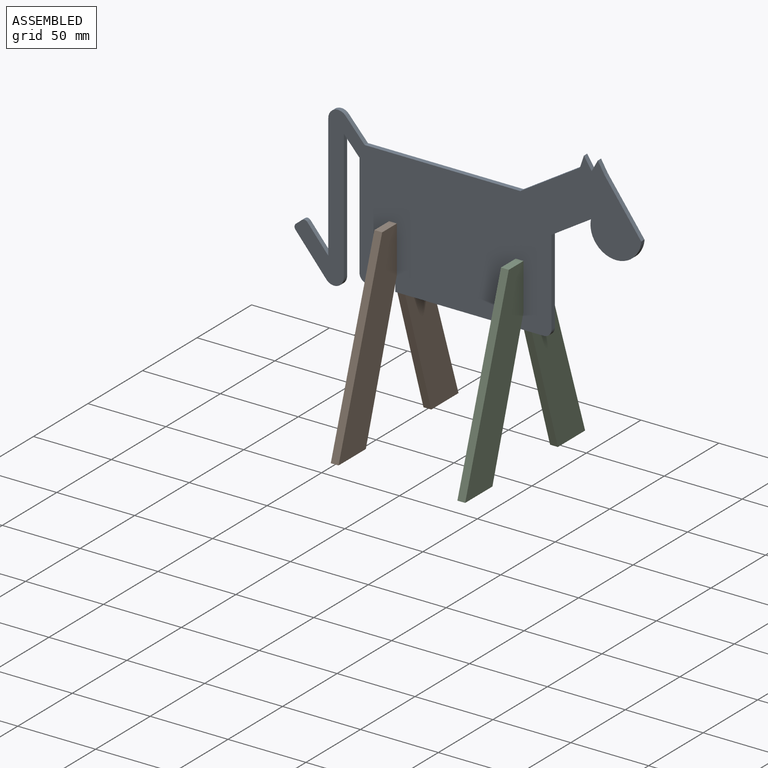
[diagram: assembled view]
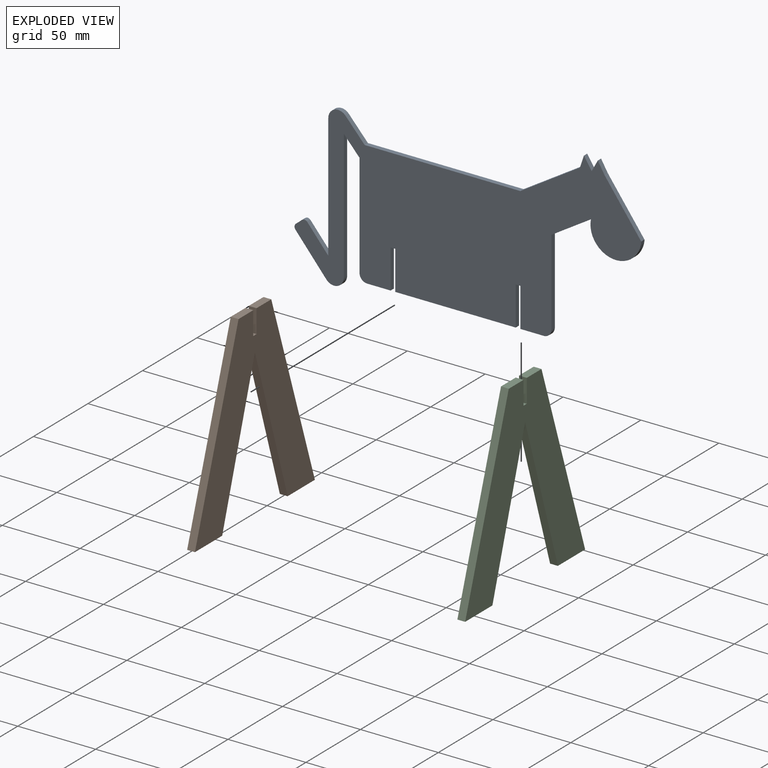
[diagram: exploded view]
GUIDED TOUR — MATED ASSEMBLY (Onshape document 58ab483d8db0d80fd6d0d6fe, AutoMate assembly 58ab483d8db0d80fd6d0d6fe_6cc54207824ee66ce0dc1627_bd182ea36f4a58ef7261e756_default)

This assembly has 3 components, labeled P0..P2 below (a component is one placed occurrence of a part; the same part can appear more than once), held together by 3 mates. A mate is a constraint between two components; its type names the relative motion it leaves free:
  PLANAR — leaves sliding in the plane through the listed point (normal = the listed direction) and rotation about that normal free.
Axis/direction vectors are unit vectors and 'through' points are millimeter coordinates, both in the assembly's world frame.

MATES
  1. PLANAR "Planar 1": P2 <-> P0, direction (0.000, 0.000, 1.000) through (121.61, -61.99, -29.25) mm
  2. PLANAR "Planar 2": P2 <-> P0, direction (-1.000, 0.000, 0.000) through (119.11, -61.99, -39.25) mm
  3. PLANAR "Planar 3": P0 <-> P2, direction (0.000, -1.000, 0.000) through (80.44, -63.49, -54.25) mm

ASSEMBLY ORDER
  1. P0 — the base component [order verified]
  2. P2 [order verified]
  3. P1 [order verified]
Order-tag legend:
  [order verified] — this step's position reverses a verified removal order: the component was checked to insert without passing through the ones already placed.

Of the 3 components, 1 carries the full construction recipe — the FeatureScript program that regenerates the part's solid from scratch; the rest are supplied as boundary geometry only.
Each toured component is shown spotlighted twice — in the assembled view, then in the exploded view, where a leader line traces a displaced component back to its assembled socket (saturated green if recipe-attached, orange if geometry-only; every other component desaturated gray) — followed by its recipe or geometry summary and the mates that hold it.
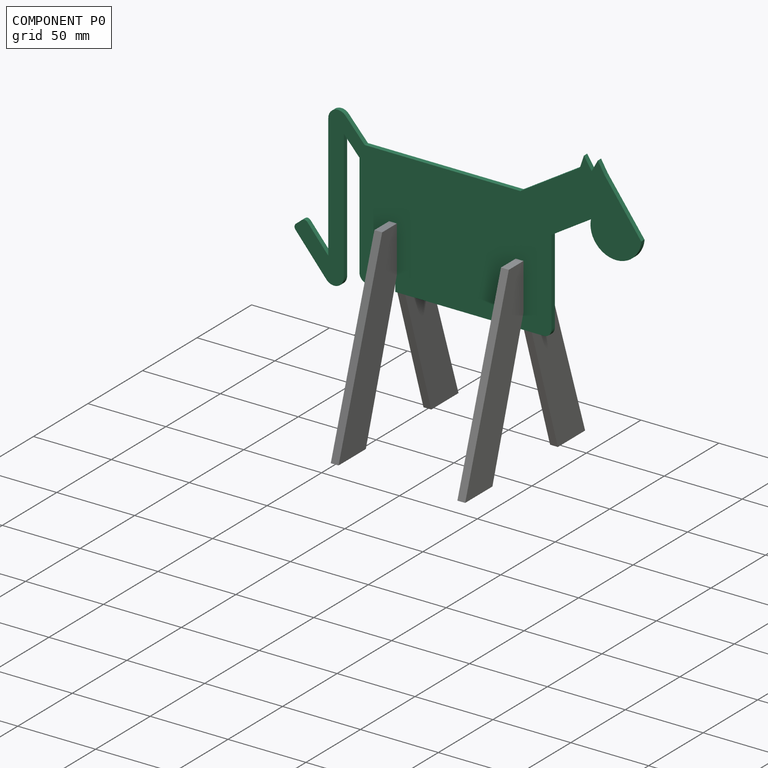
[diagram: component P0 — assembled]
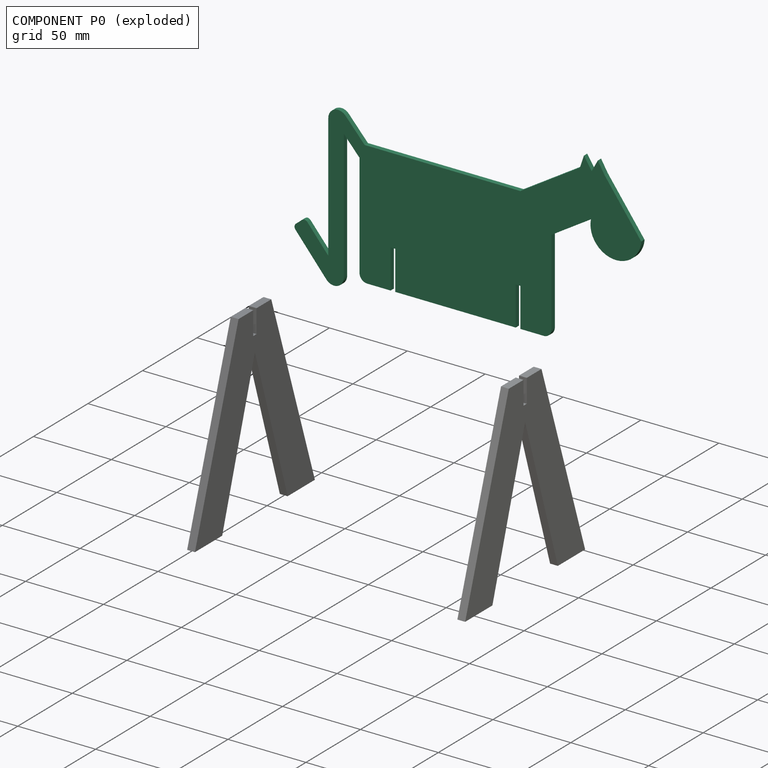
[diagram: component P0 — exploded]
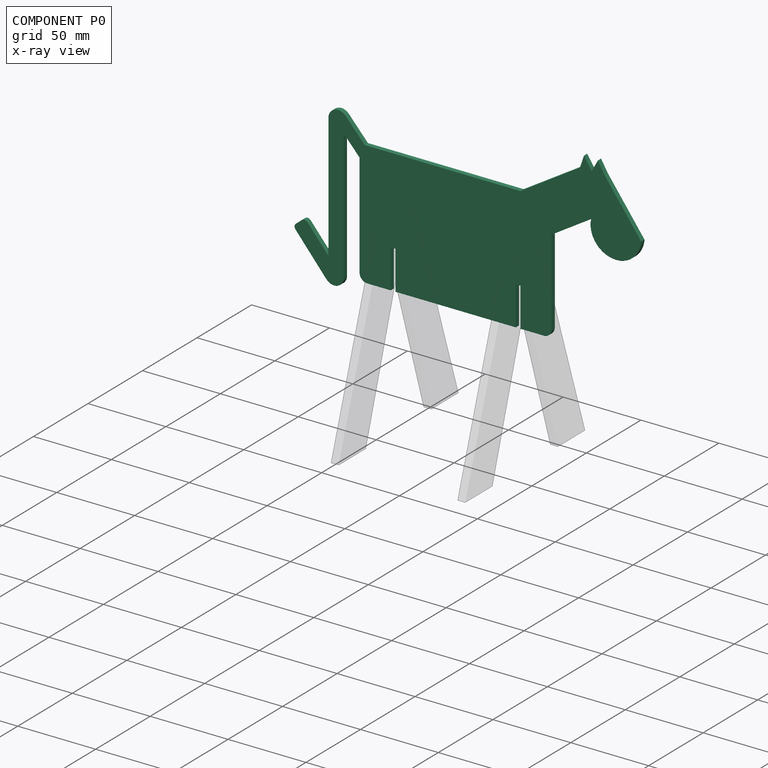
[diagram: component P0 — x-ray view]
COMPONENT P0 — recipe-attached (CADFS 00548355, mesh-verified: the recipe's output STEP matches this component's geometry to below the mesh-comparison resolution (tessellation chordal tolerance ~0.378 mm)).
Held by: PLANAR mate "Planar 1" to P2; PLANAR mate "Planar 2" to P2; PLANAR mate "Planar 3" to P2.
Construction recipe (FeatureScript — the CAD program that rebuilds this solid; sketch coordinates are in the units given by the * unit suffixes, e.g. mm):

FeatureScript 1549;
import(path : "onshape/std/geometry.fs", version : "1549.0");
import(path : "onshape/std/common.fs", version : "1549.0");
const mm = millimeter;
const VERTEX = EntityType.VERTEX;
const EDGE = EntityType.EDGE;
const FACE = EntityType.FACE;
const BODY = EntityType.BODY;
function v(x, y){return vector(x, y);}
function OD(order){return orderDisambiguation(order);}
function OSD(set){return originalSetDisambiguation(set);}
function TD(topology){return topologyDisambiguation(topology);}
function TDD(query){return trueDependencyDisambiguation(query);}
function sQuery(a, b, c) {return sketchEntityQuery(a, b, c);}

annotation { "Feature Type Name" : "Feature", "Feature Type Description" : "" }
export const myFeature = defineFeature(function(context is Context, id is Id, definition is map)
    precondition{}
    {
        {
            var Q0;
            Q0=qCreatedBy(makeId("Front.planeOp"),FACE);
            var sketch = newSketch(context, id + "F0", { "sketchPlane" : qUnion([Q0])});
            skLineSegment(sketch, "E0.bottom", {"start": v(-5, 0) * mm, "end": v(-20, 0) * mm});
            skLineSegment(sketch, "E0.top", {"start": v(-20, 80) * mm, "end": v(-120, 80) * mm});
            skLineSegment(sketch, "E0.left", {"start": v(0, 5) * mm, "end": v(0, 60) * mm});
            skLineSegment(sketch, "E0.right", {"start": v(-123.33, 5) * mm, "end": v(-123.33, 71.73) * mm});
            skLineSegment(sketch, "E1", {"start": v(-20, 0) * mm, "end": v(-20, 25) * mm});
            skLineSegment(sketch, "E2", {"start": v(-20, 25) * mm, "end": v(-23, 25) * mm});
            skLineSegment(sketch, "E3", {"start": v(-23, 25) * mm, "end": v(-23, 0) * mm});
            skLineSegment(sketch, "E4", {"start": v(-118.33, 0) * mm, "end": v(-103.33, 0) * mm});
            skLineSegment(sketch, "E5", {"start": v(-103.33, 0) * mm, "end": v(-103.33, 25) * mm});
            skLineSegment(sketch, "E6", {"start": v(-103.33, 25) * mm, "end": v(-100.33, 25) * mm});
            skLineSegment(sketch, "E7", {"start": v(-100.33, 25) * mm, "end": v(-100.33, 0) * mm});
            skLineSegment(sketch, "E8", {"start": v(-20, 80) * mm, "end": v(18.2, 103.78) * mm});
            skLineSegment(sketch, "E9", {"start": v(0, 60) * mm, "end": v(25.24, 75.7) * mm});
            skLineSegment(sketch, "E10", {"start": v(18.2, 103.78) * mm, "end": v(20.82, 111.53) * mm});
            skLineSegment(sketch, "E11", {"start": v(20.82, 111.53) * mm, "end": v(25.76, 103.78) * mm});
            skLineSegment(sketch, "E12", {"start": v(25.76, 103.78) * mm, "end": v(29.7, 111.03) * mm});
            skLineSegment(sketch, "E13", {"start": v(29.7, 111.03) * mm, "end": v(33.98, 103.78) * mm});
            skLineSegment(sketch, "E14", {"start": v(33.98, 103.78) * mm, "end": v(57.58, 71.48) * mm});
            skArc(sketch, "E15", {"start": v(25.24, 75.7) * mm, "mid": v(39.26, 56.5) * mm, "end": v(57.67, 71.55) * mm});
            skPoint(sketch, "E16", {"position": v(57.58, 71.48) * mm});
            skLineSegment(sketch, "E17", {"start": v(57.58, 71.48) * mm, "end": v(57.67, 71.55) * mm});
            skLineSegment(sketch, "E18", {"start": v(57.58, 71.48) * mm, "end": v(57.58, 71.48) * mm});
            skLineSegment(sketch, "E19", {"start": v(-120, 80) * mm, "end": v(-132.25, 93.7) * mm});
            skLineSegment(sketch, "E20", {"start": v(-123.33, 71.73) * mm, "end": v(-133.33, 82.9) * mm});
            skLineSegment(sketch, "E21", {"start": v(-143.33, 89.46) * mm, "end": v(-143.33, 9.46) * mm});
            skLineSegment(sketch, "E22.trimOffspring", {"start": v(-23, 0) * mm, "end": v(-100.33, 0) * mm});
            skLineSegment(sketch, "E23.trimOffspring", {"start": v(-103.33, 0) * mm, "end": v(-118.33, 0) * mm});
            skLineSegment(sketch, "E24", {"start": v(-143.33, 9.46) * mm, "end": v(-156.79, 25.44) * mm});
            skLineSegment(sketch, "E25", {"start": v(-160.28, 25.74) * mm, "end": v(-164.14, 22.49) * mm});
            skArc(sketch, "E26.filletArc", {"start": v(-132.25, 93.7) * mm, "mid": v(-139.25, 95.4) * mm, "end": v(-143.33, 89.46) * mm});
            skArc(sketch, "E27.filletArc", {"start": v(-156.79, 25.44) * mm, "mid": v(-158.47, 26.31) * mm, "end": v(-160.28, 25.74) * mm});
            skPoint(sketch, "E28.visualSharp", {"position": v(-161.23, 24.94) * mm});
            skArc(sketch, "E28.filletArc", {"start": v(-164.14, 22.49) * mm, "mid": v(-165, 20.8) * mm, "end": v(-164.44, 19) * mm});
            skLineSegment(sketch, "E29", {"start": v(-133.33, 82.9) * mm, "end": v(-133.33, -0.54) * mm});
            skLineSegment(sketch, "E30", {"start": v(-144.54, -4.63) * mm, "end": v(-164.44, 19) * mm});
            skArc(sketch, "E31.filletArc", {"start": v(-5, 0) * mm, "mid": v(-1.46, 1.46) * mm, "end": v(0, 5) * mm});
            skArc(sketch, "E32.filletArc", {"start": v(-123.33, 5) * mm, "mid": v(-121.87, 1.46) * mm, "end": v(-118.33, 0) * mm});
            skPoint(sketch, "E33.visualSharp", {"position": v(-133.33, -17.93) * mm});
            skArc(sketch, "E33.filletArc", {"start": v(-144.54, -4.63) * mm, "mid": v(-137.5, -6.5) * mm, "end": v(-133.33, -0.54) * mm});
            skSolve(sketch);
        }
        {
            var Q0;
            Q0=makeQuery(id+"F0.imprint","IMPRINT",FACE,{"disambiguationData":[TD([[makeQuery(id+"F0.imprint","IMPRINT",EDGE,{"derivedFrom":sQuery(id+"F0.wireOp",EDGE,"E0.top")}),1.0]])]});
            extrude(context, id + "F1", {"entities" : qUnion([Q0]), "depth" : 3 * mm});
        }
    });
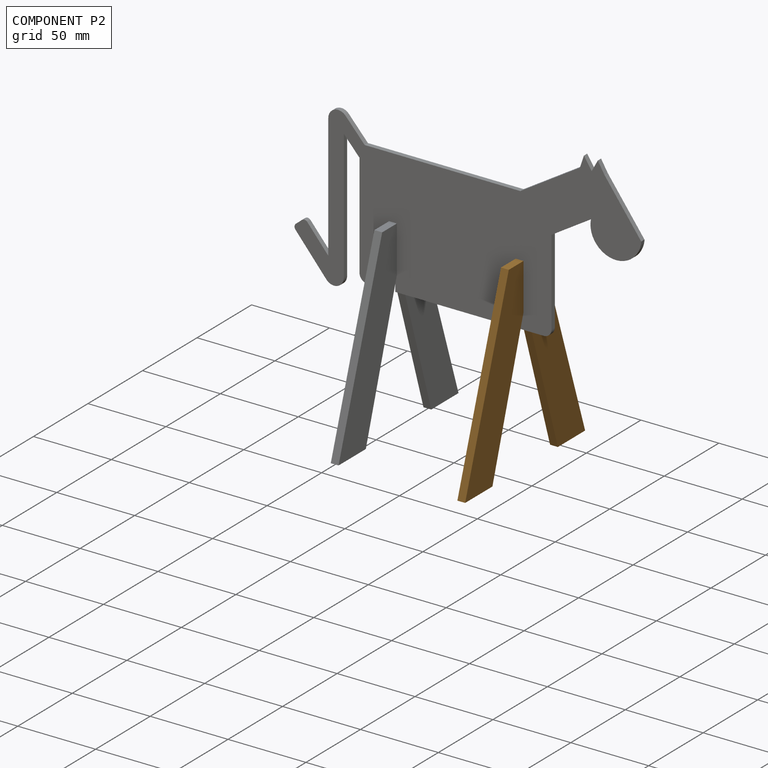
[diagram: component P2 — assembled]
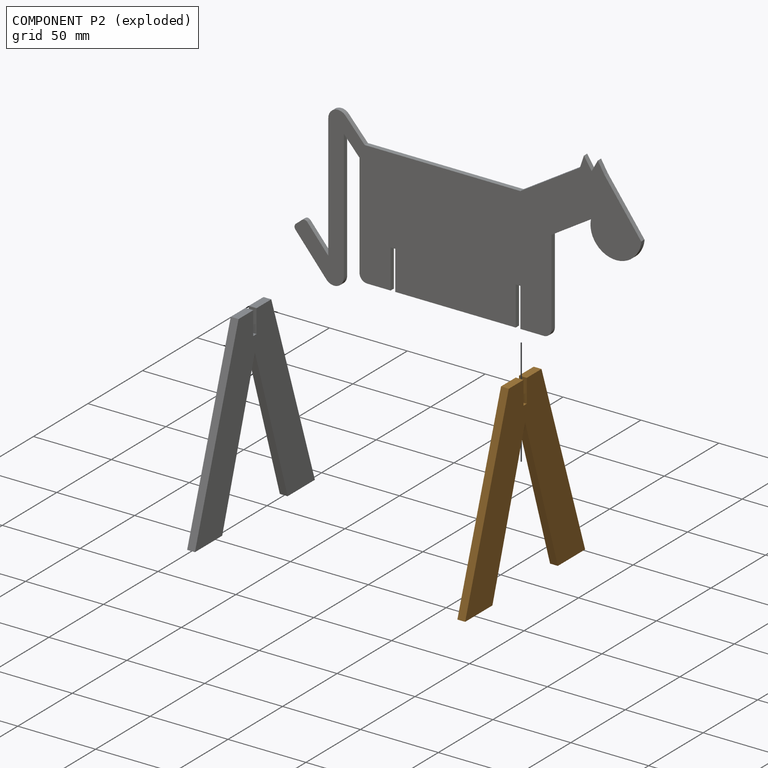
[diagram: component P2 — exploded]
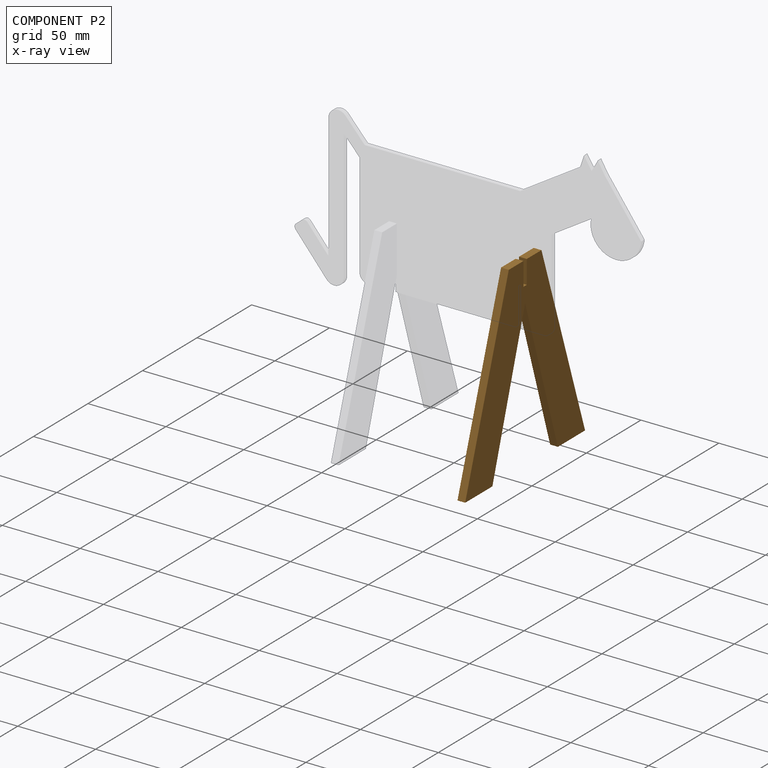
[diagram: component P2 — x-ray view]
COMPONENT P2 — geometry summary (no construction recipe available for this part):
  bounding box: 120.0 x 110.0 x 5.0 mm
  B-rep topology: 1 solid, 13 faces, 66 edges
  volume: 27525 mm^3 (42% of its bounding box)
  symmetry: 2-fold rotationally symmetric about the z axis; mirror-symmetric across its x mid-plane, y mid-plane
Held by: PLANAR mate "Planar 1" to P0; PLANAR mate "Planar 2" to P0; PLANAR mate "Planar 3" to P0.
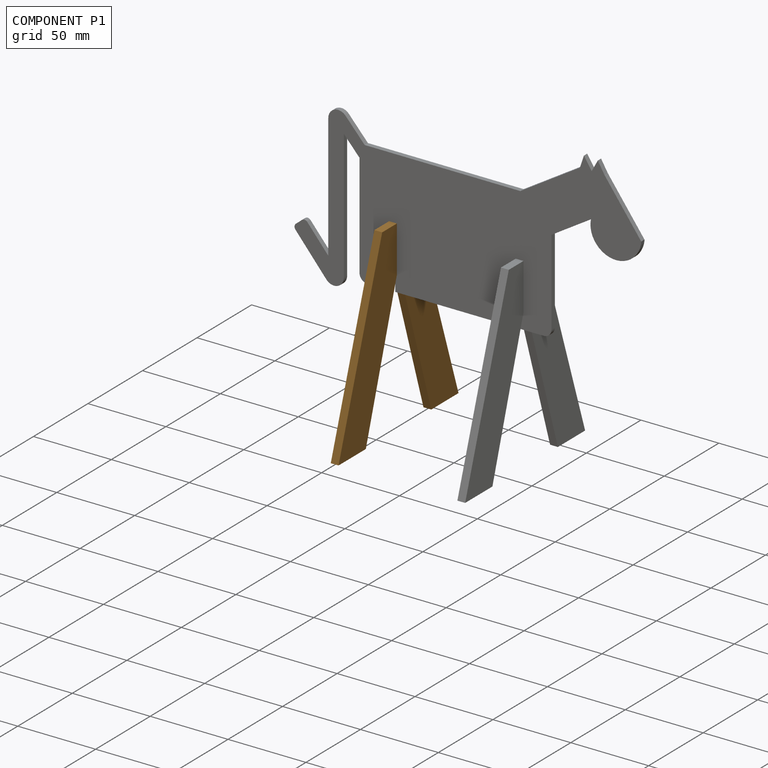
[diagram: component P1 — assembled]
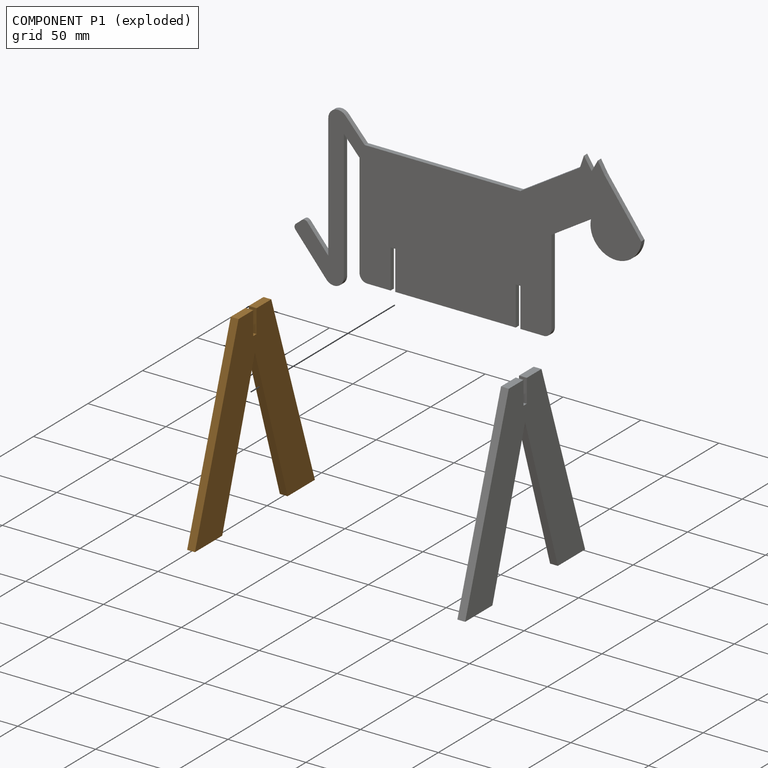
[diagram: component P1 — exploded]
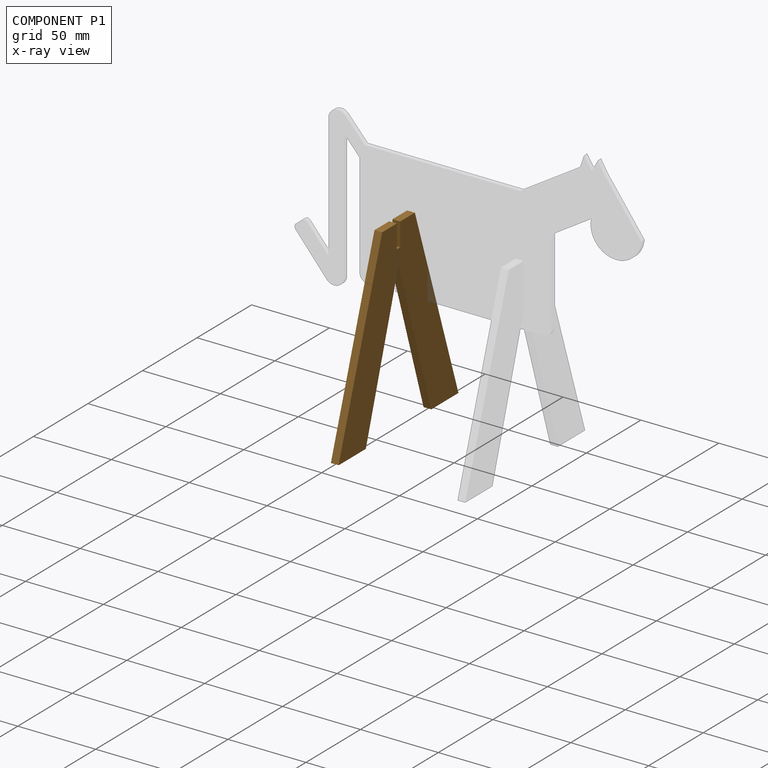
[diagram: component P1 — x-ray view]
COMPONENT P1 — geometry summary (no construction recipe available for this part):
  bounding box: 120.0 x 110.0 x 5.0 mm
  B-rep topology: 1 solid, 13 faces, 66 edges
  volume: 27525 mm^3 (42% of its bounding box)
  symmetry: 2-fold rotationally symmetric about the z axis; mirror-symmetric across its x mid-plane, y mid-plane
Held by: no mates (free).
PROVENANCE & LICENSES
Assembly (occurrences, transforms, mates, per-part STEP geometry): AutoMate dataset, Zenodo record 7776208, CC0.
Construction recipes: CADFS (HuggingFace VladPyatov/CADFS, CC-BY-4.0, layered over the ABC dataset), FeatureScript reconstruction programs keyed by ABC model id.
Join: ABC meta listings map ABC model id -> Onshape documentId; within a shared document, parts are matched by geometric signature (bounding-box dims + volume at 0.1% relative tolerance, exact B-rep face/solid counts).
Verification: 1 of this assembly's 3 components carries a recipe attachment, and every attachment is mesh-verified: the CADFS STEP and the AutoMate member STEP were compared as meshes in their shared local frame (symmetric sampled-point-to-mesh distance); worst across the 1 attachment: below the mesh-comparison resolution (tessellation chordal tolerance ~0.378 mm) on a 252 mm part.
Renders: orthographic iso camera (az 35 / el 25); the floor grid conveys scale (grid pitch printed in each image; no ruler). In the exploded view each component is displaced by its stored offset vector: the offsets alone carry the explosion direction (mate normal/axis signs are not orientation cues and do not encode it), and separation distances are assigned per mate-chain, not proportionally to assembly-order depth.
